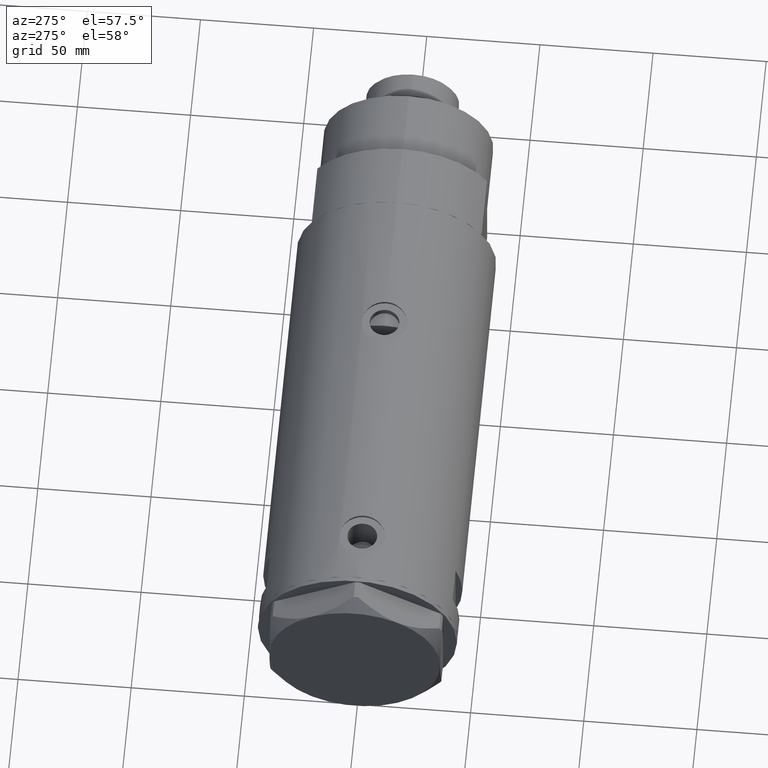
[diagram: clean part render]
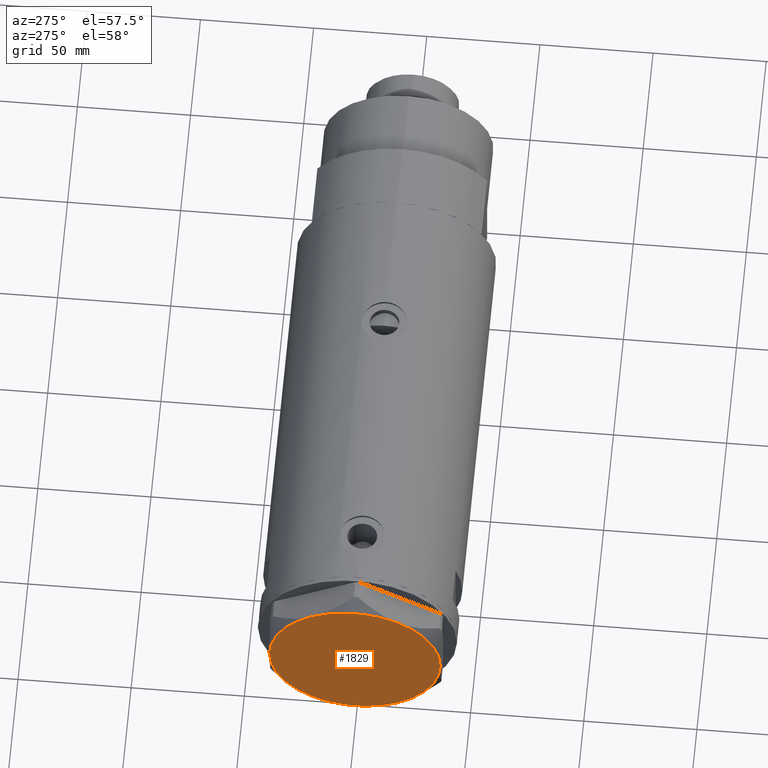
[diagram: same view with one face highlighted and labeled with its STEP entity id]
A machine part, auxiliary view. The second image highlights one B-rep face of the part: STEP entity #1829.
In plain terms, the highlighted planar face has unit normal (-1, -0, 0).
Its self-contained STEP definition (entity closure, byte-faithful):
#55 = ORIENTED_EDGE ( 'NONE', *, *, #481, .T. ) ;
#126 = VERTEX_POINT ( 'NONE', #3702 ) ;
#306 = AXIS2_PLACEMENT_3D ( 'NONE', #3934, #652, #2098 ) ;
#323 = DIRECTION ( 'NONE',  ( 0.000000000000000000, 0.000000000000000000, 1.000000000000000000 ) ) ;
#347 = CARTESIAN_POINT ( 'NONE',  ( 0.000000000000000000, 0.000000000000000000, 13.00000000000000000 ) ) ;
#372 = AXIS2_PLACEMENT_3D ( 'NONE', #1896, #1917, #3800 ) ;
#481 = EDGE_CURVE ( 'NONE', #4701, #1200, #3649, .T. ) ;
#496 = CARTESIAN_POINT ( 'NONE',  ( -18.87499999999999645, 32.69245899286256218, 13.00000000000000000 ) ) ;
#652 = DIRECTION ( 'NONE',  ( 0.000000000000000000, 0.000000000000000000, 1.000000000000000000 ) ) ;
#693 = PLANE ( 'NONE',  #1373 ) ;
#937 = EDGE_CURVE ( 'NONE', #3713, #1181, #4580, .T. ) ;
#1055 = ORIENTED_EDGE ( 'NONE', *, *, #3956, .T. ) ;
#1075 = CIRCLE ( 'NONE', #2582, 37.75000000000000000 ) ;
#1181 = VERTEX_POINT ( 'NONE', #3227 ) ;
#1200 = VERTEX_POINT ( 'NONE', #1842 ) ;
#1238 = DIRECTION ( 'NONE',  ( 1.000000000000000000, 0.000000000000000000, 0.000000000000000000 ) ) ;
#1285 = ORIENTED_EDGE ( 'NONE', *, *, #2836, .T. ) ;
#1373 = AXIS2_PLACEMENT_3D ( 'NONE', #4112, #323, #3801 ) ;
#1379 = DIRECTION ( 'NONE',  ( 0.000000000000000000, 0.000000000000000000, 1.000000000000000000 ) ) ;
#1539 = ORIENTED_EDGE ( 'NONE', *, *, #3069, .T. ) ;
#1598 = AXIS2_PLACEMENT_3D ( 'NONE', #3845, #2499, #2074 ) ;
#1829 = ADVANCED_FACE ( 'NONE', ( #4332 ), #693, .T. ) ;
#1842 = CARTESIAN_POINT ( 'NONE',  ( -37.75000000000000000, -1.201851678989727067E-14, 13.00000000000000000 ) ) ;
#1896 = CARTESIAN_POINT ( 'NONE',  ( 0.000000000000000000, 0.000000000000000000, 13.00000000000000000 ) ) ;
#1917 = DIRECTION ( 'NONE',  ( 0.000000000000000000, 0.000000000000000000, 1.000000000000000000 ) ) ;
#1926 = VERTEX_POINT ( 'NONE', #2778 ) ;
#2027 = CIRCLE ( 'NONE', #4061, 37.75000000000000000 ) ;
#2074 = DIRECTION ( 'NONE',  ( 1.000000000000000000, 0.000000000000000000, 0.000000000000000000 ) ) ;
#2098 = DIRECTION ( 'NONE',  ( 1.000000000000000000, 0.000000000000000000, 0.000000000000000000 ) ) ;
#2182 = DIRECTION ( 'NONE',  ( 1.000000000000000000, 0.000000000000000000, 0.000000000000000000 ) ) ;
#2195 = DIRECTION ( 'NONE',  ( 1.000000000000000000, 0.000000000000000000, 0.000000000000000000 ) ) ;
#2265 = DIRECTION ( 'NONE',  ( 0.000000000000000000, 0.000000000000000000, 1.000000000000000000 ) ) ;
#2485 = AXIS2_PLACEMENT_3D ( 'NONE', #3705, #1379, #2182 ) ;
#2499 = DIRECTION ( 'NONE',  ( 0.000000000000000000, 0.000000000000000000, 1.000000000000000000 ) ) ;
#2582 = AXIS2_PLACEMENT_3D ( 'NONE', #3458, #2265, #1238 ) ;
#2778 = CARTESIAN_POINT ( 'NONE',  ( 37.75000000000000711, 1.802777518484591547E-14, 13.00000000000000000 ) ) ;
#2836 = EDGE_CURVE ( 'NONE', #1926, #126, #4215, .T. ) ;
#3069 = EDGE_CURVE ( 'NONE', #1200, #3713, #2027, .T. ) ;
#3227 = CARTESIAN_POINT ( 'NONE',  ( 18.87499999999998579, -32.69245899286256218, 13.00000000000000000 ) ) ;
#3356 = CIRCLE ( 'NONE', #372, 37.75000000000000000 ) ;
#3444 = ORIENTED_EDGE ( 'NONE', *, *, #4228, .T. ) ;
#3458 = CARTESIAN_POINT ( 'NONE',  ( 0.000000000000000000, 0.000000000000000000, 13.00000000000000000 ) ) ;
#3649 = CIRCLE ( 'NONE', #1598, 37.75000000000000000 ) ;
#3702 = CARTESIAN_POINT ( 'NONE',  ( 18.87500000000000000, 32.69245899286255508, 13.00000000000000000 ) ) ;
#3705 = CARTESIAN_POINT ( 'NONE',  ( 0.000000000000000000, 0.000000000000000000, 13.00000000000000000 ) ) ;
#3713 = VERTEX_POINT ( 'NONE', #4239 ) ;
#3800 = DIRECTION ( 'NONE',  ( 1.000000000000000000, 0.000000000000000000, 0.000000000000000000 ) ) ;
#3801 = DIRECTION ( 'NONE',  ( 1.000000000000000000, 0.000000000000000000, -0.000000000000000000 ) ) ;
#3845 = CARTESIAN_POINT ( 'NONE',  ( 0.000000000000000000, 0.000000000000000000, 13.00000000000000000 ) ) ;
#3934 = CARTESIAN_POINT ( 'NONE',  ( 0.000000000000000000, 0.000000000000000000, 13.00000000000000000 ) ) ;
#3956 = EDGE_CURVE ( 'NONE', #1181, #1926, #3356, .T. ) ;
#4061 = AXIS2_PLACEMENT_3D ( 'NONE', #347, #4830, #2195 ) ;
#4112 = CARTESIAN_POINT ( 'NONE',  ( 0.000000000000000000, 0.000000000000000000, 13.00000000000000000 ) ) ;
#4215 = CIRCLE ( 'NONE', #306, 37.75000000000000000 ) ;
#4228 = EDGE_CURVE ( 'NONE', #126, #4701, #1075, .T. ) ;
#4239 = CARTESIAN_POINT ( 'NONE',  ( -18.87499999999999645, -32.69245899286255508, 13.00000000000000000 ) ) ;
#4332 = FACE_OUTER_BOUND ( 'NONE', #4414, .T. ) ;
#4333 = ORIENTED_EDGE ( 'NONE', *, *, #937, .T. ) ;
#4414 = EDGE_LOOP ( 'NONE', ( #1055, #1285, #3444, #55, #1539, #4333 ) ) ;
#4580 = CIRCLE ( 'NONE', #2485, 37.75000000000000000 ) ;
#4701 = VERTEX_POINT ( 'NONE', #496 ) ;
#4830 = DIRECTION ( 'NONE',  ( 0.000000000000000000, 0.000000000000000000, 1.000000000000000000 ) ) ;